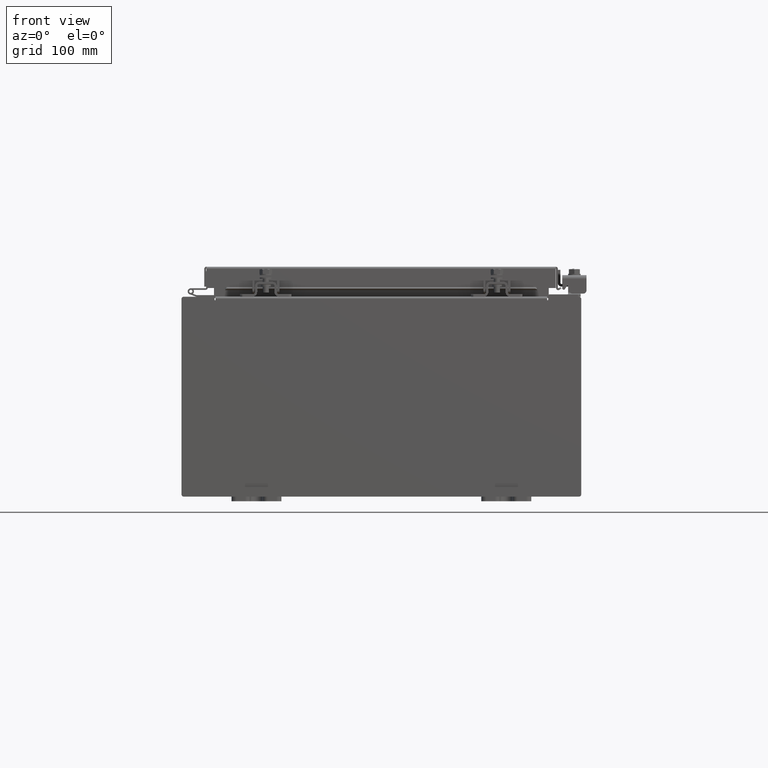
[diagram: clean part render]
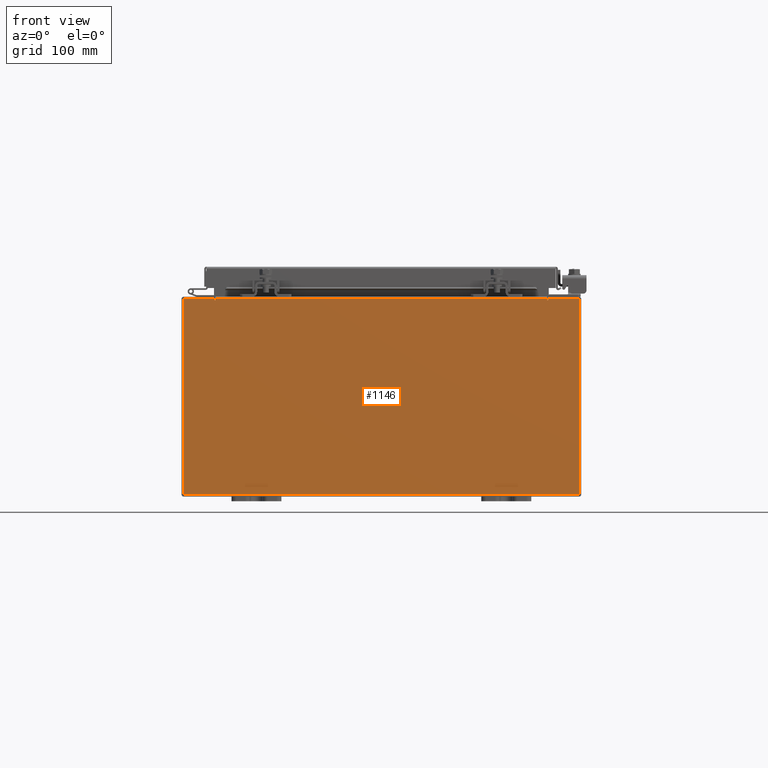
[diagram: same view with one face highlighted and labeled with its STEP entity id]
A machine part, front view. The second image highlights one B-rep face of the part: STEP entity #1146.
In plain terms, the highlighted planar face has unit normal (-0, 1, -0).
Its self-contained STEP definition (entity closure, byte-faithful):
#398 = FACE_OUTER_BOUND ( 'NONE', #688, .T. ) ;
#688 = EDGE_LOOP ( 'NONE', ( #21333, #25215, #26488, #6377, #19395, #5711, #9956, #8171, #14610, #1065, #23359, #9907 ) ) ;
#1065 = ORIENTED_EDGE ( 'NONE', *, *, #6650, .T. ) ;
#1146 = ADVANCED_FACE ( 'NONE', ( #398 ), #10451, .F. ) ;
#1544 = CARTESIAN_POINT ( 'NONE',  ( 6.674549999999914700, -0.0000000000000000000, -1.448568502570924200E-013 ) ) ;
#1584 = VERTEX_POINT ( 'NONE', #10708 ) ;
#1958 = EDGE_CURVE ( 'NONE', #15580, #29090, #27379, .T. ) ;
#2008 = CARTESIAN_POINT ( 'NONE',  ( -6.637200000000000900, -0.0000000000000000000, 3.874949999999999200 ) ) ;
#2173 = VERTEX_POINT ( 'NONE', #9837 ) ;
#2928 = LINE ( 'NONE', #26883, #27146 ) ;
#2953 = CARTESIAN_POINT ( 'NONE',  ( -7.925300000000000000, 0.0000000000000000000, -3.925300000000000500 ) ) ;
#3363 = EDGE_CURVE ( 'NONE', #9791, #12690, #9013, .T. ) ;
#3952 = EDGE_CURVE ( 'NONE', #12690, #1584, #10751, .T. ) ;
#4438 = CARTESIAN_POINT ( 'NONE',  ( -7.925300000000000000, 0.0000000000000000000, 3.925299999999999100 ) ) ;
#4539 = CARTESIAN_POINT ( 'NONE',  ( 7.925300000000000000, 0.0000000000000000000, 3.925299999999999100 ) ) ;
#4674 = DIRECTION ( 'NONE',  ( -0.0000000000000000000, -0.0000000000000000000, 1.000000000000000000 ) ) ;
#4707 = VERTEX_POINT ( 'NONE', #15443 ) ;
#4771 = CARTESIAN_POINT ( 'NONE',  ( -7.925300000000000000, 0.0000000000000000000, 3.925299999999999100 ) ) ;
#5099 = EDGE_CURVE ( 'NONE', #6508, #17334, #26039, .T. ) ;
#5658 = LINE ( 'NONE', #17589, #10939 ) ;
#5711 = ORIENTED_EDGE ( 'NONE', *, *, #10611, .F. ) ;
#6292 = DIRECTION ( 'NONE',  ( -1.000000000000000000, -0.0000000000000000000, -0.0000000000000000000 ) ) ;
#6377 = ORIENTED_EDGE ( 'NONE', *, *, #22649, .T. ) ;
#6429 = DIRECTION ( 'NONE',  ( 0.0000000000000000000, 0.0000000000000000000, -1.000000000000000000 ) ) ;
#6508 = VERTEX_POINT ( 'NONE', #14714 ) ;
#6650 = EDGE_CURVE ( 'NONE', #4707, #15580, #5658, .T. ) ;
#6828 = CARTESIAN_POINT ( 'NONE',  ( -6.637200000000000900, -0.0000000000000000000, 0.0000000000000000000 ) ) ;
#7125 = CARTESIAN_POINT ( 'NONE',  ( 6.655874999999998200, 0.0000000000000000000, 3.874949999999999200 ) ) ;
#7363 = VECTOR ( 'NONE', #15818, 39.37007874015748100 ) ;
#8171 = ORIENTED_EDGE ( 'NONE', *, *, #5099, .T. ) ;
#8492 = EDGE_CURVE ( 'NONE', #17334, #4707, #14079, .T. ) ;
#9013 = LINE ( 'NONE', #6828, #20414 ) ;
#9187 = VECTOR ( 'NONE', #4674, 39.37007874015748100 ) ;
#9374 = DIRECTION ( 'NONE',  ( 0.0000000000000000000, 0.0000000000000000000, -1.000000000000000000 ) ) ;
#9642 = VECTOR ( 'NONE', #18147, 39.37007874015748100 ) ;
#9701 = VECTOR ( 'NONE', #14406, 39.37007874015748100 ) ;
#9791 = VERTEX_POINT ( 'NONE', #16264 ) ;
#9837 = CARTESIAN_POINT ( 'NONE',  ( 6.674549999999999100, 0.0000000000000000000, 3.874949999999999200 ) ) ;
#9907 = ORIENTED_EDGE ( 'NONE', *, *, #10319, .T. ) ;
#9911 = VECTOR ( 'NONE', #21513, 39.37007874015748100 ) ;
#9956 = ORIENTED_EDGE ( 'NONE', *, *, #24682, .F. ) ;
#10025 = CARTESIAN_POINT ( 'NONE',  ( 6.637199999999997300, 0.0000000000000000000, 3.874949999999999200 ) ) ;
#10129 = CARTESIAN_POINT ( 'NONE',  ( -6.637200000000000900, -1.707404996040164500E-016, 3.912299999999999200 ) ) ;
#10319 = EDGE_CURVE ( 'NONE', #29090, #22761, #23888, .T. ) ;
#10424 = CARTESIAN_POINT ( 'NONE',  ( -6.674550000000000900, 0.0000000000000000000, 3.925299999999999100 ) ) ;
#10451 = PLANE ( 'NONE',  #18089 ) ;
#10611 = EDGE_CURVE ( 'NONE', #2173, #19814, #26013, .T. ) ;
#10708 = CARTESIAN_POINT ( 'NONE',  ( -6.674550000000000900, 0.0000000000000000000, 3.874949999999999200 ) ) ;
#10751 = CIRCLE ( 'NONE', #26030, 0.01867500000000003900 ) ;
#10936 = DIRECTION ( 'NONE',  ( 0.0000000000000000000, 0.0000000000000000000, 1.000000000000000000 ) ) ;
#10939 = VECTOR ( 'NONE', #6292, 39.37007874015748100 ) ;
#11104 = LINE ( 'NONE', #18927, #9701 ) ;
#12690 = VERTEX_POINT ( 'NONE', #2008 ) ;
#13189 = VECTOR ( 'NONE', #24138, 39.37007874015748100 ) ;
#13314 = DIRECTION ( 'NONE',  ( -0.0000000000000000000, 1.000000000000000000, -0.0000000000000000000 ) ) ;
#14079 = LINE ( 'NONE', #4539, #7363 ) ;
#14206 = DIRECTION ( 'NONE',  ( 0.0000000000000000000, -1.000000000000000000, 0.0000000000000000000 ) ) ;
#14406 = DIRECTION ( 'NONE',  ( 0.0000000000000000000, 0.0000000000000000000, 1.000000000000000000 ) ) ;
#14610 = ORIENTED_EDGE ( 'NONE', *, *, #8492, .T. ) ;
#14644 = VERTEX_POINT ( 'NONE', #17894 ) ;
#14714 = CARTESIAN_POINT ( 'NONE',  ( 6.674549999999999100, 0.0000000000000000000, 3.925299999999999100 ) ) ;
#15391 = CARTESIAN_POINT ( 'NONE',  ( 0.0000000000000000000, 0.0000000000000000000, 0.0000000000000000000 ) ) ;
#15443 = CARTESIAN_POINT ( 'NONE',  ( 7.925300000000000000, 0.0000000000000000000, -3.925300000000000500 ) ) ;
#15562 = CARTESIAN_POINT ( 'NONE',  ( -6.655875000000000900, 0.0000000000000000000, 3.874949999999999200 ) ) ;
#15580 = VERTEX_POINT ( 'NONE', #2953 ) ;
#15818 = DIRECTION ( 'NONE',  ( 0.0000000000000000000, 0.0000000000000000000, -1.000000000000000000 ) ) ;
#15944 = LINE ( 'NONE', #10129, #9911 ) ;
#16264 = CARTESIAN_POINT ( 'NONE',  ( -6.637200000000000900, -1.707404996040164500E-016, 3.912299999999999200 ) ) ;
#16392 = AXIS2_PLACEMENT_3D ( 'NONE', #7125, #23016, #9374 ) ;
#17334 = VERTEX_POINT ( 'NONE', #29384 ) ;
#17589 = CARTESIAN_POINT ( 'NONE',  ( -7.925300000000000000, 0.0000000000000000000, -3.925300000000000500 ) ) ;
#17894 = CARTESIAN_POINT ( 'NONE',  ( 6.637199999999999100, 0.0000000000000000000, 3.912299999999999200 ) ) ;
#18089 = AXIS2_PLACEMENT_3D ( 'NONE', #15391, #14206, #28678 ) ;
#18147 = DIRECTION ( 'NONE',  ( 1.000000000000000000, 0.0000000000000000000, 0.0000000000000000000 ) ) ;
#18927 = CARTESIAN_POINT ( 'NONE',  ( -6.674550000000000900, -0.0000000000000000000, 0.0000000000000000000 ) ) ;
#19395 = ORIENTED_EDGE ( 'NONE', *, *, #24777, .F. ) ;
#19814 = VERTEX_POINT ( 'NONE', #10025 ) ;
#20414 = VECTOR ( 'NONE', #6429, 39.37007874015748100 ) ;
#21333 = ORIENTED_EDGE ( 'NONE', *, *, #24232, .F. ) ;
#21513 = DIRECTION ( 'NONE',  ( 1.000000000000000000, 0.0000000000000000000, 0.0000000000000000000 ) ) ;
#21913 = DIRECTION ( 'NONE',  ( -2.170286390200002500E-014, 0.0000000000000000000, -1.000000000000000000 ) ) ;
#22649 = EDGE_CURVE ( 'NONE', #9791, #14644, #15944, .T. ) ;
#22761 = VERTEX_POINT ( 'NONE', #10424 ) ;
#23016 = DIRECTION ( 'NONE',  ( -0.0000000000000000000, 1.000000000000000000, -0.0000000000000000000 ) ) ;
#23359 = ORIENTED_EDGE ( 'NONE', *, *, #1958, .T. ) ;
#23888 = LINE ( 'NONE', #4438, #9642 ) ;
#24138 = DIRECTION ( 'NONE',  ( 1.000000000000000000, 0.0000000000000000000, 0.0000000000000000000 ) ) ;
#24232 = EDGE_CURVE ( 'NONE', #1584, #22761, #11104, .T. ) ;
#24682 = EDGE_CURVE ( 'NONE', #6508, #2173, #29284, .T. ) ;
#24690 = DIRECTION ( 'NONE',  ( 0.0000000000000000000, 0.0000000000000000000, -1.000000000000000000 ) ) ;
#24777 = EDGE_CURVE ( 'NONE', #19814, #14644, #2928, .T. ) ;
#25215 = ORIENTED_EDGE ( 'NONE', *, *, #3952, .F. ) ;
#26013 = CIRCLE ( 'NONE', #16392, 0.01867500000000003900 ) ;
#26030 = AXIS2_PLACEMENT_3D ( 'NONE', #15562, #13314, #24690 ) ;
#26039 = LINE ( 'NONE', #26827, #13189 ) ;
#26488 = ORIENTED_EDGE ( 'NONE', *, *, #3363, .F. ) ;
#26827 = CARTESIAN_POINT ( 'NONE',  ( -7.925300000000000000, 0.0000000000000000000, 3.925299999999999100 ) ) ;
#26883 = CARTESIAN_POINT ( 'NONE',  ( 6.637199999999999100, 0.0000000000000000000, 0.0000000000000000000 ) ) ;
#27146 = VECTOR ( 'NONE', #10936, 39.37007874015748100 ) ;
#27379 = LINE ( 'NONE', #4771, #9187 ) ;
#28562 = VECTOR ( 'NONE', #21913, 39.37007874015748100 ) ;
#28678 = DIRECTION ( 'NONE',  ( 0.0000000000000000000, -0.0000000000000000000, -1.000000000000000000 ) ) ;
#29090 = VERTEX_POINT ( 'NONE', #29296 ) ;
#29284 = LINE ( 'NONE', #1544, #28562 ) ;
#29296 = CARTESIAN_POINT ( 'NONE',  ( -7.925300000000000000, 0.0000000000000000000, 3.925299999999999100 ) ) ;
#29384 = CARTESIAN_POINT ( 'NONE',  ( 7.925300000000000000, 0.0000000000000000000, 3.925299999999999100 ) ) ;